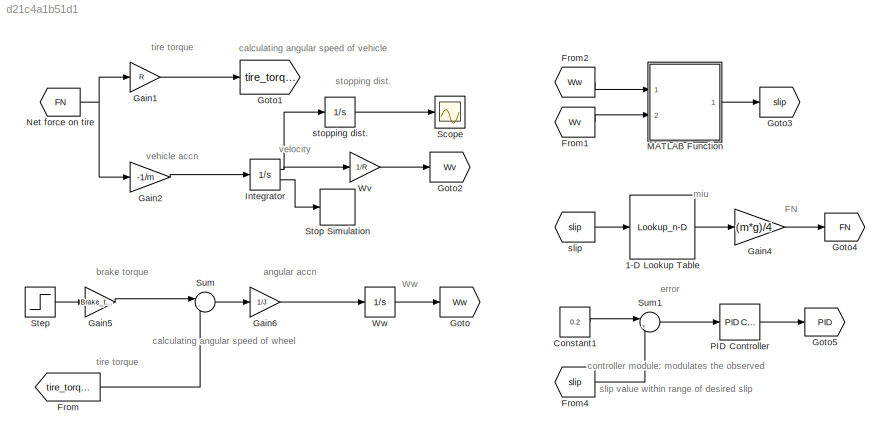
MODEL slx_d21c4a1b51d1
KIND model
CONFIG AbsTol = auto
CONFIG EnableMultiTasking = off
CONFIG FixedStep = auto
CONFIG MaxStep = 0.5
CONFIG MinStep = auto
CONFIG RelTol = 1e-6
CONFIG SampleTimeConstraint = Unconstrained
CONFIG Solver = ode23s
CONFIG SolverName = ode23s
CONFIG StartTime = 0.0
CONFIG StopTime = 50
BLOCK [Lookup_n-D] 1-D Lookup Table
  BreakpointsForDimension1 = slip
  InternalRulePriority = Speed
  NumberOfTableDimensions = 1
  Ports = [1, 1]
  RndMeth = Simplest
  Table = mu
BLOCK [Constant] Constant1
  Value = 0.2
BLOCK [From] From
  GotoTag = tire_torque
BLOCK [From] From1
  GotoTag = Wv
  TagVisibility = global
BLOCK [From] From2
  GotoTag = Ww
  TagVisibility = global
BLOCK [From] From4
  GotoTag = slip
  TagVisibility = global
BLOCK [Gain] Gain1
  Gain = R
  OutDataTypeStr = Inherit: Inherit via internal rule
  ParamDataTypeStr = Inherit: Inherit via internal rule
  SaturateOnIntegerOverflow = off
BLOCK [Gain] Gain2
  Gain = -1/m
  OutDataTypeStr = Inherit: Inherit via internal rule
  ParamDataTypeStr = Inherit: Inherit via internal rule
  SaturateOnIntegerOverflow = off
BLOCK [Gain] Gain4
  Gain = (m*g)/4
  OutDataTypeStr = Inherit: Inherit via internal rule
  ParamDataTypeStr = Inherit: Inherit via internal rule
  SaturateOnIntegerOverflow = off
BLOCK [Gain] Gain5
  Gain = Brake_torque_max
  OutDataTypeStr = Inherit: Inherit via internal rule
  ParamDataTypeStr = Inherit: Inherit via internal rule
  SaturateOnIntegerOverflow = off
BLOCK [Gain] Gain6
  Gain = 1/J
  OutDataTypeStr = Inherit: Inherit via internal rule
  ParamDataTypeStr = Inherit: Inherit via internal rule
  SaturateOnIntegerOverflow = off
BLOCK [Goto] Goto
  GotoTag = Ww
  TagVisibility = global
BLOCK [Goto] Goto1
  GotoTag = tire_torque
BLOCK [Goto] Goto2
  GotoTag = Wv
  TagVisibility = global
BLOCK [Goto] Goto3
  GotoTag = slip
  TagVisibility = global
BLOCK [Goto] Goto4
  GotoTag = FN
BLOCK [Goto] Goto5
  GotoTag = PID
BLOCK [Integrator] Integrator
  InitialCondition = V
  LimitOutput = on
  LowerSaturationLimit = 0
  Ports = [1, 2]
  ShowSaturationPort = on
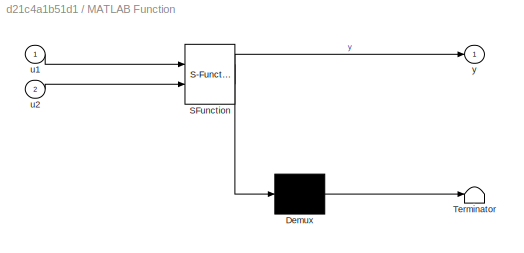
BLOCK [SubSystem] MATLAB Function
  ErrorFcn = Stateflow.Translate.translate
  PermitHierarchicalResolution = ExplicitOnly
  Ports = [2, 1]
  RequestExecContextInheritance = off
  SFBlockType = MATLAB Function
  TreatAsAtomicUnit = on
BLOCK [Demux] MATLAB Function/ Demux 
  Outputs = 1
  Ports = [1, 1]
BLOCK [S-Function] MATLAB Function/ SFunction 
  EnableBusSupport = on
  FunctionName = sf_sfun
  PortCounts = [2 2]
  Ports = [2, 2]
  SFcnIsStateOwnerBlock = off
  SFunctionDeploymentMode = off
  Tag = Stateflow S-Function ABS 2
BLOCK [Terminator] MATLAB Function/ Terminator 
BLOCK [Inport] MATLAB Function/u1
  IconDisplay = Port number
BLOCK [Inport] MATLAB Function/u2
  IconDisplay = Port number
  Port = 2
BLOCK [Outport] MATLAB Function/y
  IconDisplay = Port number
BLOCK [From] Net force on tire
  GotoTag = FN
BLOCK [Reference] PID Controller  REF=simulink/Continuous/PID Controller
  Ports = [1, 1]
  SourceBlock = simulink/Continuous/PID Controller
  SourceProductBaseCode = SL
  SourceProductName = Simulink
  SourceType = PID 1dof
BLOCK [Scope] Scope
  Floating = off
  NumInputPorts = 1
  Ports = [1]
  ScopeSpecificationString = Simulink.scopes.TimeScopeBlockCfg('CurrentConfiguration', extmgr.ConfigurationSet(extmgr.Configuration('Core','General UI',true),extmgr.Configuration('Core','Source UI',true),extmgr.Configuration('Sources','WiredSimulink',true),extmgr.Configuration('Visuals','Time Domain',true,'SerializedDisplays',{struct('MinYLimReal','-70.48202','MaxYLimReal','634.33814','YLabelReal','','MinYLimMag','0.00000','M...<+1344ch>
BLOCK [Step] Step
  SampleTime = 0
  Time = 0
BLOCK [Stop] Stop Simulation
BLOCK [Sum] Sum
  IconShape = round
  InputSameDT = off
  Inputs = |-+
  OutDataTypeStr = Inherit: Inherit via internal rule
  Ports = [2, 1]
  SaturateOnIntegerOverflow = off
BLOCK [Sum] Sum1
  IconShape = round
  InputSameDT = off
  Inputs = |+-
  OutDataTypeStr = Inherit: Inherit via internal rule
  Ports = [2, 1]
  SaturateOnIntegerOverflow = off
BLOCK [Gain] Wv
  Gain = 1/R
  OutDataTypeStr = Inherit: Inherit via internal rule
  ParamDataTypeStr = Inherit: Inherit via internal rule
  SaturateOnIntegerOverflow = off
BLOCK [Integrator] Ww
  LimitOutput = on
  LowerSaturationLimit = 0
  Ports = [1, 1]
  UpperSaturationLimit = V/R
BLOCK [From] slip
  GotoTag = slip
  TagVisibility = global
BLOCK [Integrator] stopping dist.
  Ports = [1, 1]
ANNOTATION (root): FN
ANNOTATION (root): Ww
ANNOTATION (root): angular accn
ANNOTATION (root): brake torque
ANNOTATION (root): calculating angular speed of vehicle
ANNOTATION (root): calculating angular speed of wheel
ANNOTATION (root): controller module: modulates the observed slip value within range of desired slip
ANNOTATION (root): error
ANNOTATION (root): miu
ANNOTATION (root): stopping dist.
ANNOTATION (root): tire torque
ANNOTATION (root): vehicle accn
ANNOTATION (root): velocity
LINE 1-D Lookup Table:1 -> Gain4:1
LINE Constant1:1 -> Sum1:1
LINE From1:1 -> MATLAB Function:2
LINE From2:1 -> MATLAB Function:1
LINE From4:1 -> Sum1:2
LINE From:1 -> Sum:2
LINE Gain1:1 -> Goto1:1
LINE Gain2:1 -> Integrator:1
LINE Gain4:1 -> Goto4:1
LINE Gain5:1 -> Sum:1
LINE Gain6:1 -> Ww:1
NET Integrator:1 -> Wv:1, stopping dist.:1
LINE Integrator:2 -> Stop Simulation:1
LINE MATLAB Function:1 -> Goto3:1
NET Net force on tire:1 -> Gain1:1, Gain2:1
LINE PID Controller:1 -> Goto5:1
LINE Step:1 -> Gain5:1
LINE Sum1:1 -> PID Controller:1
LINE Sum:1 -> Gain6:1
LINE Wv:1 -> Goto2:1
LINE Ww:1 -> Goto:1
LINE slip:1 -> 1-D Lookup Table:1
LINE stopping dist.:1 -> Scope:1
note: NET lines group one-source signal fan-out (src -> all destinations, sorted); 1:1 wires keep LINE
CHART MATLAB Function states=1 transitions=1
  STATE_LABEL 'eML_blk_kernel()'
  STATE_LABEL 'SCRIPT:\nfunction y = fcn(u1, u2)\nif u1>u2\n    y=(1.0 - u2/(u1 + (u1==0)*eps));\nelse\n    y=(1.0 - u1/(u2 + (u2==0)*eps));\nend'
